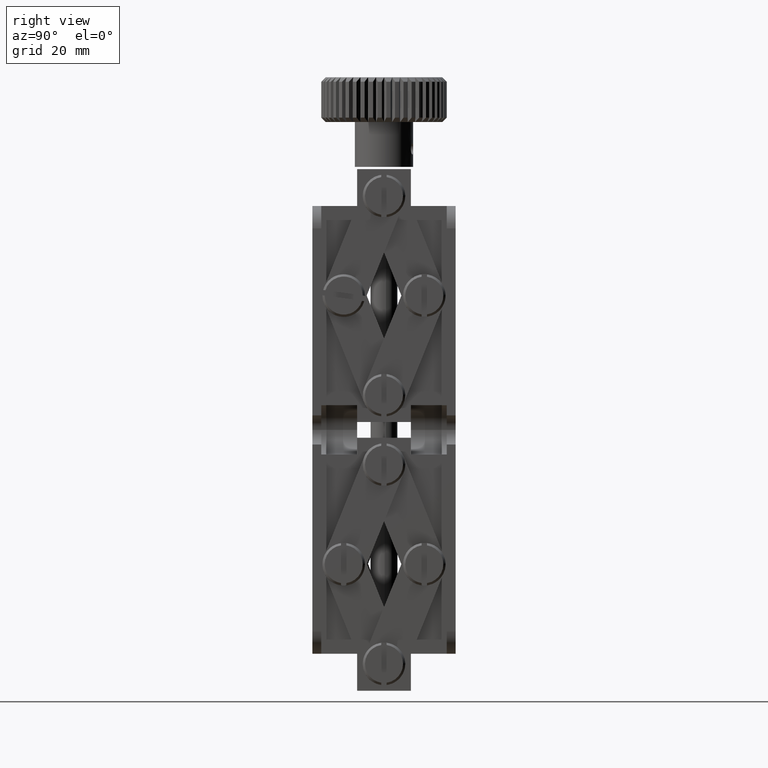
[diagram: clean part render]
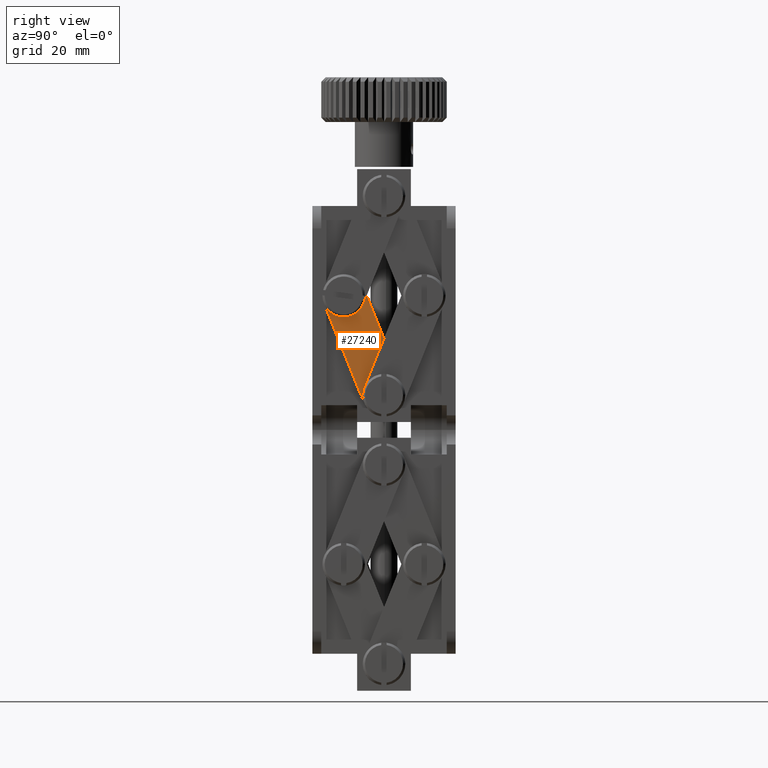
[diagram: same view with one face highlighted and labeled with its STEP entity id]
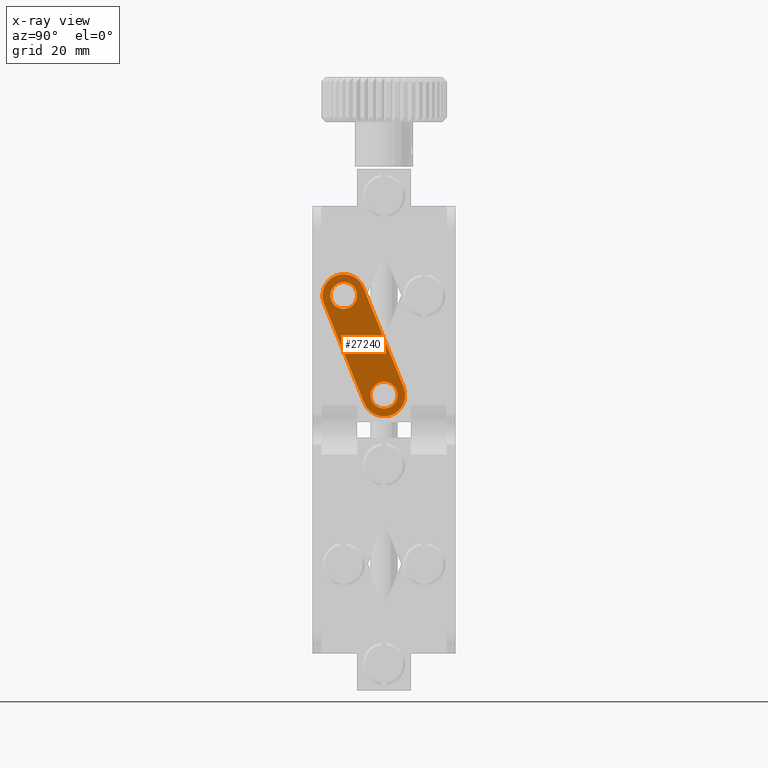
[diagram: x-ray of the same camera — body ghosted, the highlighted face saturated]
A machine part, right view. The second image highlights one B-rep face of the part: STEP entity #27240.
The next image is the same camera in x-ray: the body ghosted, the highlighted face saturated — about 0% of this face is hidden behind the body in this view.
In plain terms, the highlighted planar face has unit normal (1, 0, -0).
Its self-contained STEP definition (entity closure, byte-faithful):
#390 = AXIS2_PLACEMENT_3D ( 'NONE', #23587, #4301, #26781 ) ;
#772 = CIRCLE ( 'NONE', #21266, 4.750000000000002700 ) ;
#1791 = AXIS2_PLACEMENT_3D ( 'NONE', #14714, #37165, #17904 ) ;
#2845 = EDGE_CURVE ( 'NONE', #33547, #25007, #772, .T. ) ;
#4301 = DIRECTION ( 'NONE',  ( 1.000000000000000000, 2.060138743204159100E-016, -4.850832483493924600E-016 ) ) ;
#4914 = CARTESIAN_POINT ( 'NONE',  ( 35.50000000000002100, -4.781249999999781500, 34.40336785171309900 ) ) ;
#5217 = CIRCLE ( 'NONE', #24788, 3.000000000000000400 ) ;
#5343 = VERTEX_POINT ( 'NONE', #16500 ) ;
#5564 = EDGE_LOOP ( 'NONE', ( #37074, #12589, #14914, #32635, #32142 ) ) ;
#5581 = AXIS2_PLACEMENT_3D ( 'NONE', #15777, #38199, #18972 ) ;
#5737 = VERTEX_POINT ( 'NONE', #12120 ) ;
#6509 = CARTESIAN_POINT ( 'NONE',  ( 35.50000000000001400, 6.000000000000017800, 7.751404538712973700 ) ) ;
#7335 = VERTEX_POINT ( 'NONE', #9829 ) ;
#7721 = EDGE_LOOP ( 'NONE', ( #15118, #13982 ) ) ;
#8008 = EDGE_CURVE ( 'NONE', #33884, #5343, #25842, .T. ) ;
#8109 = DIRECTION ( 'NONE',  ( 1.000000000000000000, 2.060138743204159100E-016, -4.850832483493924600E-016 ) ) ;
#9685 = DIRECTION ( 'NONE',  ( -5.269394094356824800E-016, 0.3749999999999929500, -0.9270248108869607600 ) ) ;
#9829 = CARTESIAN_POINT ( 'NONE',  ( 35.50000000000002100, -4.124999999999793900, 32.78107443266091500 ) ) ;
#9879 = CARTESIAN_POINT ( 'NONE',  ( 35.50000000000001400, 6.000000000000017800, 7.751404538712973700 ) ) ;
#11208 = DIRECTION ( 'NONE',  ( 1.000000000000000000, 2.060138743204159100E-016, -4.850832483493924600E-016 ) ) ;
#11935 = CARTESIAN_POINT ( 'NONE',  ( 35.50000000000002100, 1.403367851713249500, 31.78125000000000400 ) ) ;
#12120 = CARTESIAN_POINT ( 'NONE',  ( 35.50000000000001400, 7.124999999999995600, 4.970330106052091200 ) ) ;
#12194 = EDGE_CURVE ( 'NONE', #7335, #32973, #32351, .T. ) ;
#12589 = ORIENTED_EDGE ( 'NONE', *, *, #30801, .T. ) ;
#13134 = DIRECTION ( 'NONE',  ( 0.0000000000000000000, 0.3749999999999927800, -0.9270248108869606500 ) ) ;
#13575 = CIRCLE ( 'NONE', #390, 3.000000000000002200 ) ;
#13982 = ORIENTED_EDGE ( 'NONE', *, *, #12194, .F. ) ;
#14710 = FACE_OUTER_BOUND ( 'NONE', #5564, .T. ) ;
#14714 = CARTESIAN_POINT ( 'NONE',  ( 35.50000000000002100, -2.999999999999814400, 30.00000000000003200 ) ) ;
#14754 = CARTESIAN_POINT ( 'NONE',  ( 35.50000000000001400, 4.875000000000039100, 10.53247897137385500 ) ) ;
#14914 = ORIENTED_EDGE ( 'NONE', *, *, #2845, .T. ) ;
#14982 = VERTEX_POINT ( 'NONE', #14754 ) ;
#15118 = ORIENTED_EDGE ( 'NONE', *, *, #37146, .F. ) ;
#15182 = CARTESIAN_POINT ( 'NONE',  ( 35.50000000000002100, 1.403367851713250400, 31.78125000000000400 ) ) ;
#15777 = CARTESIAN_POINT ( 'NONE',  ( 35.50000000000001400, 6.000000000000017800, 7.751404538712973700 ) ) ;
#16500 = CARTESIAN_POINT ( 'NONE',  ( 35.50000000000001400, 10.40336785171308000, 9.532654538712940000 ) ) ;
#17904 = DIRECTION ( 'NONE',  ( 0.0000000000000000000, 0.3749999999999928900, -0.9270248108869607600 ) ) ;
#18212 = DIRECTION ( 'NONE',  ( 1.000000000000000000, 2.060138743204159100E-016, -4.850832483493924600E-016 ) ) ;
#18275 = EDGE_CURVE ( 'NONE', #5737, #14982, #25457, .T. ) ;
#18573 = VECTOR ( 'NONE', #21502, 1000.000000000000100 ) ;
#18673 = EDGE_LOOP ( 'NONE', ( #32118, #30939 ) ) ;
#18972 = DIRECTION ( 'NONE',  ( 0.0000000000000000000, 0.3749999999999927800, -0.9270248108869606500 ) ) ;
#19407 = DIRECTION ( 'NONE',  ( -5.269394094356824800E-016, 0.3749999999999929500, -0.9270248108869607600 ) ) ;
#19598 = LINE ( 'NONE', #11935, #18573 ) ;
#20057 = VERTEX_POINT ( 'NONE', #39411 ) ;
#21266 = AXIS2_PLACEMENT_3D ( 'NONE', #37423, #18212, #40690 ) ;
#21502 = DIRECTION ( 'NONE',  ( 5.269394094356824800E-016, -0.3749999999999929500, 0.9270248108869607600 ) ) ;
#22252 = FACE_BOUND ( 'NONE', #7721, .T. ) ;
#23514 = EDGE_CURVE ( 'NONE', #20057, #33884, #41698, .T. ) ;
#23587 = CARTESIAN_POINT ( 'NONE',  ( 35.50000000000002100, -2.999999999999814400, 30.00000000000003200 ) ) ;
#24408 = AXIS2_PLACEMENT_3D ( 'NONE', #30448, #11208, #33715 ) ;
#24641 = VECTOR ( 'NONE', #19407, 1000.000000000000100 ) ;
#24788 = AXIS2_PLACEMENT_3D ( 'NONE', #9879, #32389, #13134 ) ;
#25007 = VERTEX_POINT ( 'NONE', #4914 ) ;
#25457 = CIRCLE ( 'NONE', #5581, 3.000000000000000400 ) ;
#25570 = PLANE ( 'NONE',  #36536 ) ;
#25842 = CIRCLE ( 'NONE', #24408, 4.750000000000001800 ) ;
#26781 = DIRECTION ( 'NONE',  ( 0.0000000000000000000, 0.3749999999999928900, -0.9270248108869607600 ) ) ;
#27240 = ADVANCED_FACE ( 'NONE', ( #39322, #22252, #14710 ), #25570, .T. ) ;
#27318 = CARTESIAN_POINT ( 'NONE',  ( 35.50000000000002100, -2.999999999999814400, 30.00000000000003200 ) ) ;
#28950 = DIRECTION ( 'NONE',  ( 1.000000000000000000, 2.060138743204158900E-016, -4.850832483493922700E-016 ) ) ;
#29086 = CARTESIAN_POINT ( 'NONE',  ( 35.50000000000002100, -7.403367851712879100, 28.21875000000007100 ) ) ;
#29609 = EDGE_CURVE ( 'NONE', #25007, #20057, #38911, .T. ) ;
#30448 = CARTESIAN_POINT ( 'NONE',  ( 35.50000000000001400, 6.000000000000017800, 7.751404538712973700 ) ) ;
#30585 = DIRECTION ( 'NONE',  ( 0.0000000000000000000, 0.3749999999999928900, -0.9270248108869608700 ) ) ;
#30801 = EDGE_CURVE ( 'NONE', #5343, #33547, #19598, .T. ) ;
#30937 = CARTESIAN_POINT ( 'NONE',  ( 35.50000000000002100, -1.874999999999835000, 27.21892556733914900 ) ) ;
#30939 = ORIENTED_EDGE ( 'NONE', *, *, #35059, .F. ) ;
#31667 = CARTESIAN_POINT ( 'NONE',  ( 35.50000000000001400, 1.596632148286953000, 5.970154538713006600 ) ) ;
#32118 = ORIENTED_EDGE ( 'NONE', *, *, #18275, .F. ) ;
#32142 = ORIENTED_EDGE ( 'NONE', *, *, #23514, .T. ) ;
#32351 = CIRCLE ( 'NONE', #1791, 3.000000000000002200 ) ;
#32389 = DIRECTION ( 'NONE',  ( 1.000000000000000000, 2.060138743204159100E-016, -4.850832483493924600E-016 ) ) ;
#32635 = ORIENTED_EDGE ( 'NONE', *, *, #29609, .T. ) ;
#32973 = VERTEX_POINT ( 'NONE', #30937 ) ;
#33547 = VERTEX_POINT ( 'NONE', #15182 ) ;
#33715 = DIRECTION ( 'NONE',  ( 0.0000000000000000000, 0.3749999999999928900, -0.9270248108869606500 ) ) ;
#33747 = AXIS2_PLACEMENT_3D ( 'NONE', #27318, #8109, #30585 ) ;
#33884 = VERTEX_POINT ( 'NONE', #31667 ) ;
#35059 = EDGE_CURVE ( 'NONE', #14982, #5737, #5217, .T. ) ;
#36536 = AXIS2_PLACEMENT_3D ( 'NONE', #6509, #28950, #9685 ) ;
#37074 = ORIENTED_EDGE ( 'NONE', *, *, #8008, .T. ) ;
#37146 = EDGE_CURVE ( 'NONE', #32973, #7335, #13575, .T. ) ;
#37165 = DIRECTION ( 'NONE',  ( 1.000000000000000000, 2.060138743204159100E-016, -4.850832483493924600E-016 ) ) ;
#37423 = CARTESIAN_POINT ( 'NONE',  ( 35.50000000000002100, -2.999999999999814400, 30.00000000000003200 ) ) ;
#38199 = DIRECTION ( 'NONE',  ( 1.000000000000000000, 2.060138743204159100E-016, -4.850832483493924600E-016 ) ) ;
#38911 = CIRCLE ( 'NONE', #33747, 4.750000000000002700 ) ;
#39322 = FACE_BOUND ( 'NONE', #18673, .T. ) ;
#39411 = CARTESIAN_POINT ( 'NONE',  ( 35.50000000000002100, -7.403367851712879100, 28.21875000000007100 ) ) ;
#40690 = DIRECTION ( 'NONE',  ( 0.0000000000000000000, 0.3749999999999928900, -0.9270248108869608700 ) ) ;
#41698 = LINE ( 'NONE', #29086, #24641 ) ;